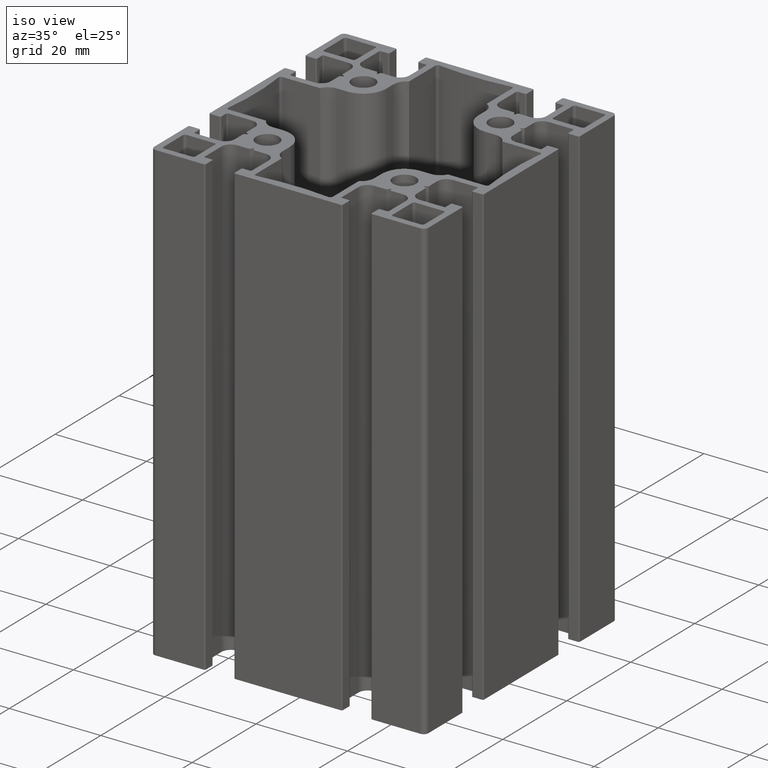
[diagram: clean part render]
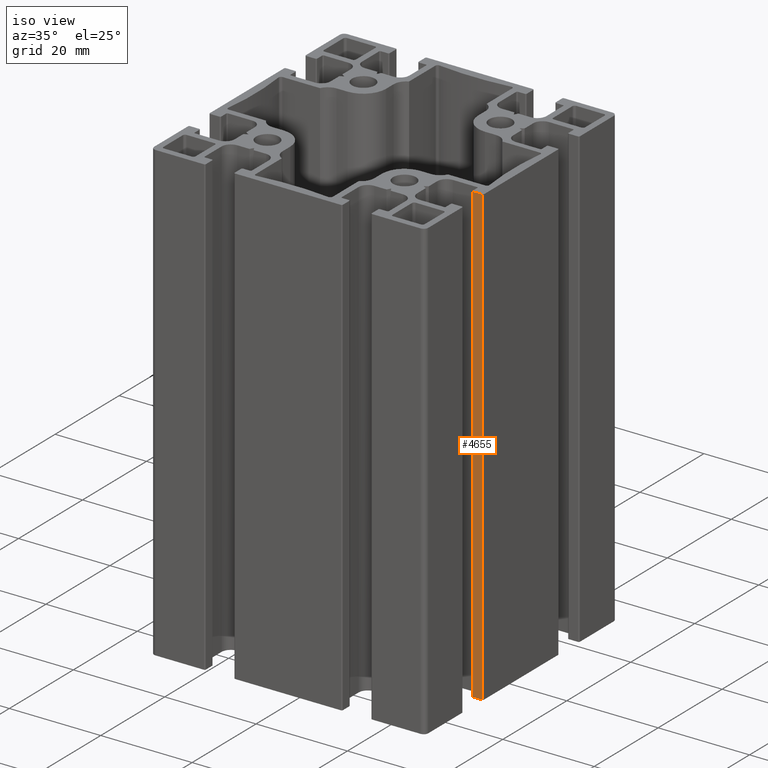
[diagram: same view with one face highlighted and labeled with its STEP entity id]
A machine part, iso view. The second image highlights one B-rep face of the part: STEP entity #4655.
In plain terms, the highlighted planar face has unit normal (0, -1, 0).
Its self-contained STEP definition (entity closure, byte-faithful):
#487=FACE_OUTER_BOUND('',#729,.T.);
#729=EDGE_LOOP('',(#3455,#3456,#3457,#3458));
#1089=LINE('',#7332,#1569);
#1090=LINE('',#7335,#1570);
#1091=LINE('',#7337,#1571);
#1092=LINE('',#7338,#1572);
#1569=VECTOR('',#5931,100.);
#1570=VECTOR('',#5934,2.00668889999861);
#1571=VECTOR('',#5935,2.00668889999861);
#1572=VECTOR('',#5936,100.);
#2059=VERTEX_POINT('',#7328);
#2060=VERTEX_POINT('',#7330);
#2061=VERTEX_POINT('',#7334);
#2062=VERTEX_POINT('',#7336);
#2641=EDGE_CURVE('',#2059,#2060,#1089,.T.);
#2642=EDGE_CURVE('',#2061,#2059,#1090,.T.);
#2643=EDGE_CURVE('',#2062,#2060,#1091,.T.);
#2644=EDGE_CURVE('',#2061,#2062,#1092,.T.);
#3455=ORIENTED_EDGE('',*,*,#2642,.T.);
#3456=ORIENTED_EDGE('',*,*,#2641,.T.);
#3457=ORIENTED_EDGE('',*,*,#2643,.F.);
#3458=ORIENTED_EDGE('',*,*,#2644,.F.);
#4469=PLANE('',#5015);
#4655=ADVANCED_FACE('',(#487),#4469,.T.);
#5015=AXIS2_PLACEMENT_3D('',#7333,#5932,#5933);
#5931=DIRECTION('',(0.,0.,1.));
#5932=DIRECTION('center_axis',(0.,-1.,0.));
#5933=DIRECTION('ref_axis',(1.,0.,0.));
#5934=DIRECTION('',(1.,0.,0.));
#5935=DIRECTION('',(1.,0.,0.));
#5936=DIRECTION('',(0.,0.,1.));
#7328=CARTESIAN_POINT('',(29.7491629424979,-11.8394645099998,0.));
#7330=CARTESIAN_POINT('',(29.7491629424979,-11.8394645099998,100.));
#7332=CARTESIAN_POINT('',(29.7491629424979,-11.8394645099998,0.));
#7333=CARTESIAN_POINT('Origin',(27.7424740424993,-11.8394645099998,0.));
#7334=CARTESIAN_POINT('',(27.7424740424993,-11.8394645099998,0.));
#7335=CARTESIAN_POINT('',(27.7424740424993,-11.8394645099998,0.));
#7336=CARTESIAN_POINT('',(27.7424740424993,-11.8394645099998,100.));
#7337=CARTESIAN_POINT('',(27.7424740424993,-11.8394645099998,100.));
#7338=CARTESIAN_POINT('',(27.7424740424993,-11.8394645099998,0.));